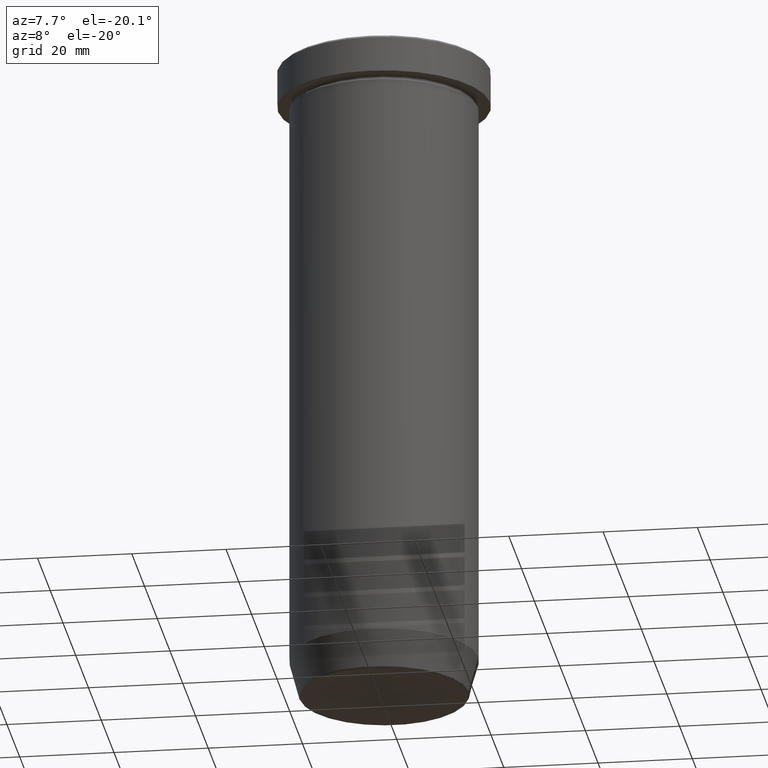
[diagram: clean part render]
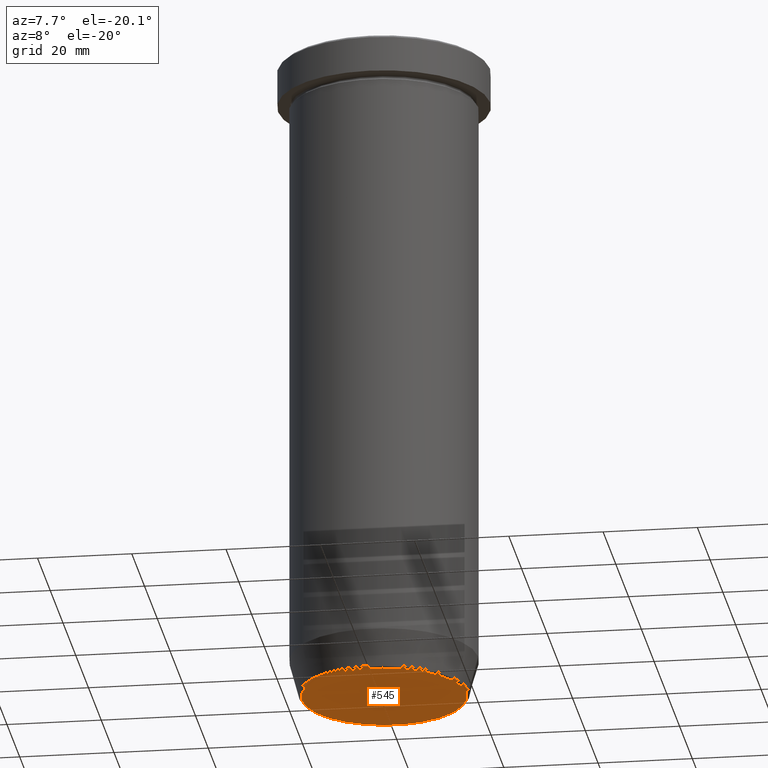
[diagram: same view with one face highlighted and labeled with its STEP entity id]
A machine part, auxiliary view. The second image highlights one B-rep face of the part: STEP entity #545.
In plain terms, the highlighted planar face has unit normal (0, -0, 1).
Its self-contained STEP definition (entity closure, byte-faithful):
#14 = CIRCLE ( 'NONE', #168, 17.47274296656153680 ) ;
#18 = DIRECTION ( 'NONE',  ( 0.000000000000000000, 0.000000000000000000, -1.000000000000000000 ) ) ;
#55 = EDGE_CURVE ( 'NONE', #255, #470, #14, .T. ) ;
#59 = ORIENTED_EDGE ( 'NONE', *, *, #174, .T. ) ;
#61 = DIRECTION ( 'NONE',  ( 1.000000000000000000, 0.000000000000000000, 0.000000000000000000 ) ) ;
#62 = CARTESIAN_POINT ( 'NONE',  ( 0.000000000000000000, 0.000000000000000000, -140.0000000000000000 ) ) ;
#70 = FACE_OUTER_BOUND ( 'NONE', #454, .T. ) ;
#168 = AXIS2_PLACEMENT_3D ( 'NONE', #62, #18, #428 ) ;
#174 = EDGE_CURVE ( 'NONE', #470, #255, #178, .T. ) ;
#178 = CIRCLE ( 'NONE', #521, 17.47274296656153680 ) ;
#237 = CARTESIAN_POINT ( 'NONE',  ( 17.47274296656153680, 0.000000000000000000, -140.0000000000000000 ) ) ;
#253 = CARTESIAN_POINT ( 'NONE',  ( -17.47274296656153680, 2.169366823916868503E-15, -140.0000000000000000 ) ) ;
#255 = VERTEX_POINT ( 'NONE', #253 ) ;
#282 = CARTESIAN_POINT ( 'NONE',  ( 0.000000000000000000, 0.000000000000000000, -140.0000000000000000 ) ) ;
#292 = DIRECTION ( 'NONE',  ( 0.000000000000000000, -0.000000000000000000, 1.000000000000000000 ) ) ;
#328 = CARTESIAN_POINT ( 'NONE',  ( 0.000000000000000000, 1.102182119232618069E-14, -140.0000000000000000 ) ) ;
#333 = DIRECTION ( 'NONE',  ( 1.000000000000000000, 0.000000000000000000, 0.000000000000000000 ) ) ;
#398 = AXIS2_PLACEMENT_3D ( 'NONE', #328, #292, #333 ) ;
#428 = DIRECTION ( 'NONE',  ( 1.000000000000000000, 0.000000000000000000, 0.000000000000000000 ) ) ;
#454 = EDGE_LOOP ( 'NONE', ( #59, #548 ) ) ;
#470 = VERTEX_POINT ( 'NONE', #237 ) ;
#521 = AXIS2_PLACEMENT_3D ( 'NONE', #282, #534, #61 ) ;
#532 = PLANE ( 'NONE',  #398 ) ;
#534 = DIRECTION ( 'NONE',  ( 0.000000000000000000, 0.000000000000000000, -1.000000000000000000 ) ) ;
#545 = ADVANCED_FACE ( 'NONE', ( #70 ), #532, .F. ) ;
#548 = ORIENTED_EDGE ( 'NONE', *, *, #55, .T. ) ;